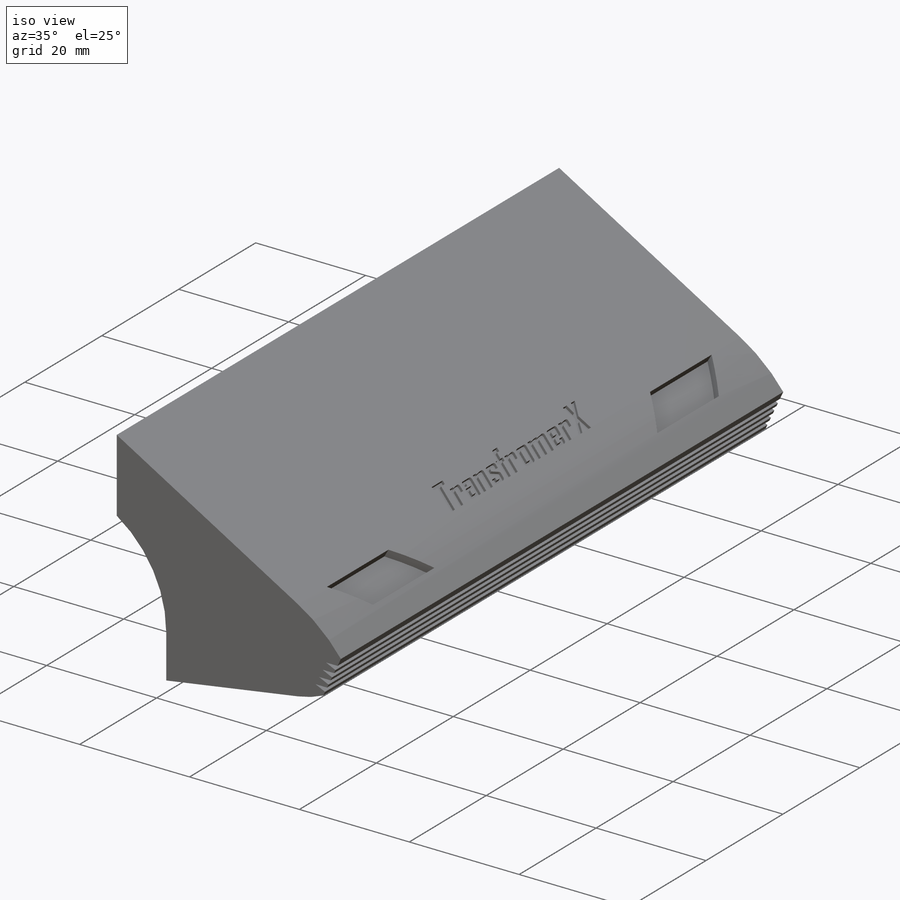
[diagram: iso view]
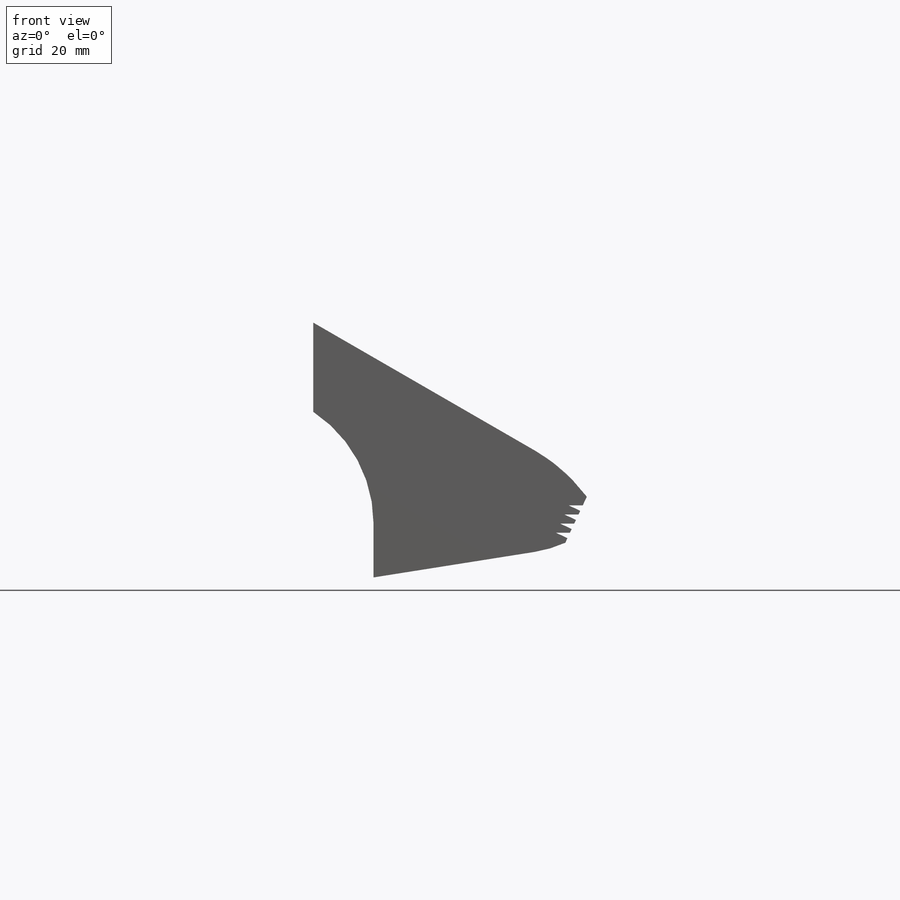
[diagram: front view]
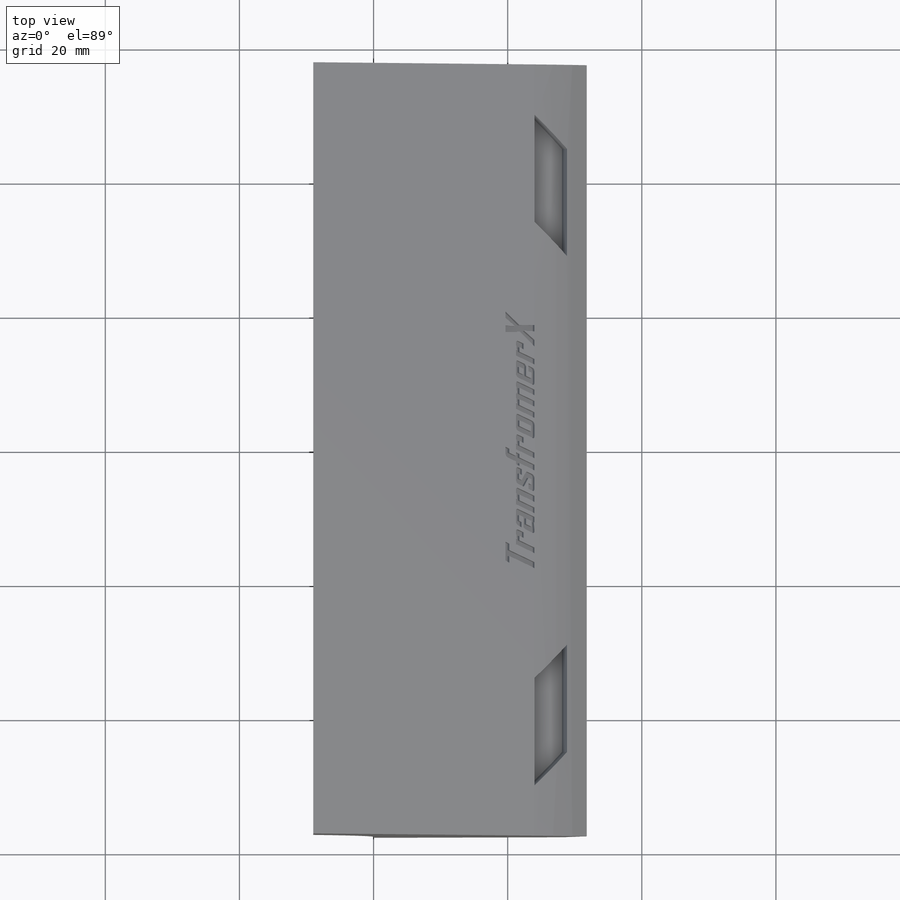
[diagram: top view]
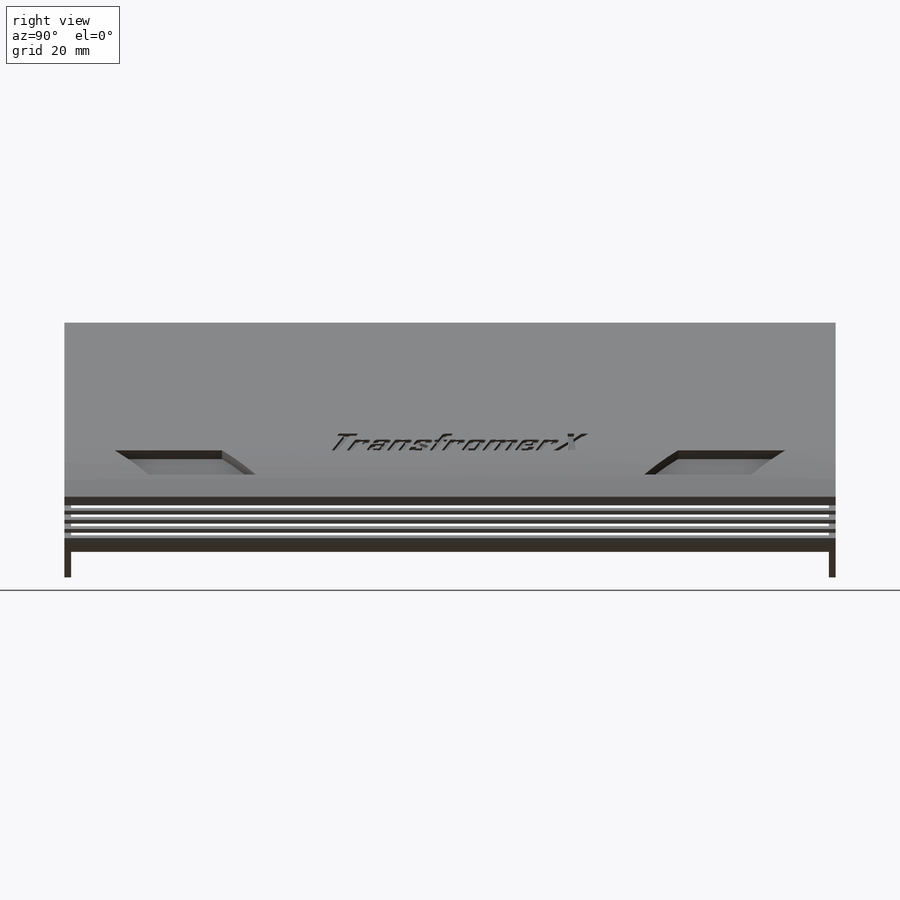
[diagram: right view]
SOLIDWORKS PART (.sldprt)
format: sldprt  version: not decoded by parser v0  size: 660,480 bytes
history: native  units: mm
features: sketch x7, cut_extrude x4, extrude x3, mirror x2, material x1, shell x1, pattern_linear x1 (+13 scaffold rows collapsed)
feature tree (32):
  scaffold x13  (default folders/planes/origin — collapsed)
  material  "Material <not specified>"
  sketch  "Sketch1"  dims[c1.D1=20.0mm c1.D2=8.0mm c1.D3=33.0mm c1.D4=38.0mm c1.D5=24.0mm c1.D6=24.0mm c2.D6=9.0deg c2.D7=~23.198773mm c3.D7=60.0deg]
  extrude  "Boss-Extrude1"  Depth=115mm
  sketch  "Sketch2"  dims[c1.D1=26.0mm c1.D2=18.0mm c1.D3=~5.157036mm c2.D3=65.0deg c2.D4=3.2mm]
  extrude  "Boss-Extrude2"  [1 undecoded]
  sketch  "Sketch7"  dims[c1.D1=16.0mm c1.D2=6.0mm c1.D3=7.5mm c1.D4=16.0mm c2.D4=50.0deg]
  cut_extrude  "Cut-Extrude2"  Depth=1.5mm
  mirror  "Mirror1"
  shell  "Shell1"  Thickness=1mm
  sketch  "Sketch3"  dims[D1=0.8mm D2=1.3mm]
  cut_extrude  "Cut-Extrude1"  [1 undecoded]
  pattern_linear  "LPattern1"  Count1=4 Count2=1 Spacing1=1.5mm Spacing2=10mm
  sketch  "Sketch8"  dims[D1=10.0mm D2=3.0mm]
  extrude  "Boss-Extrude3"  Depth=3mm
  sketch  "Sketch9"  dims[D1=5.0mm D2=1.2mm]
  cut_extrude  "Cut-Extrude3"  Depth=2mm
  mirror  "Mirror2"
  sketch  "Sketch10"  dims[D1=3.5mm]
  cut_extrude  "Cut-Extrude5"  Depth=0.5mm
decode coverage: 14 of 18 modeling features carry decoded parameters
note: ~ marks probable driven/reference dimensions
note: 2 parameter values undecoded
note: suppression state not decoded; provenance and decode notes live in map.json
